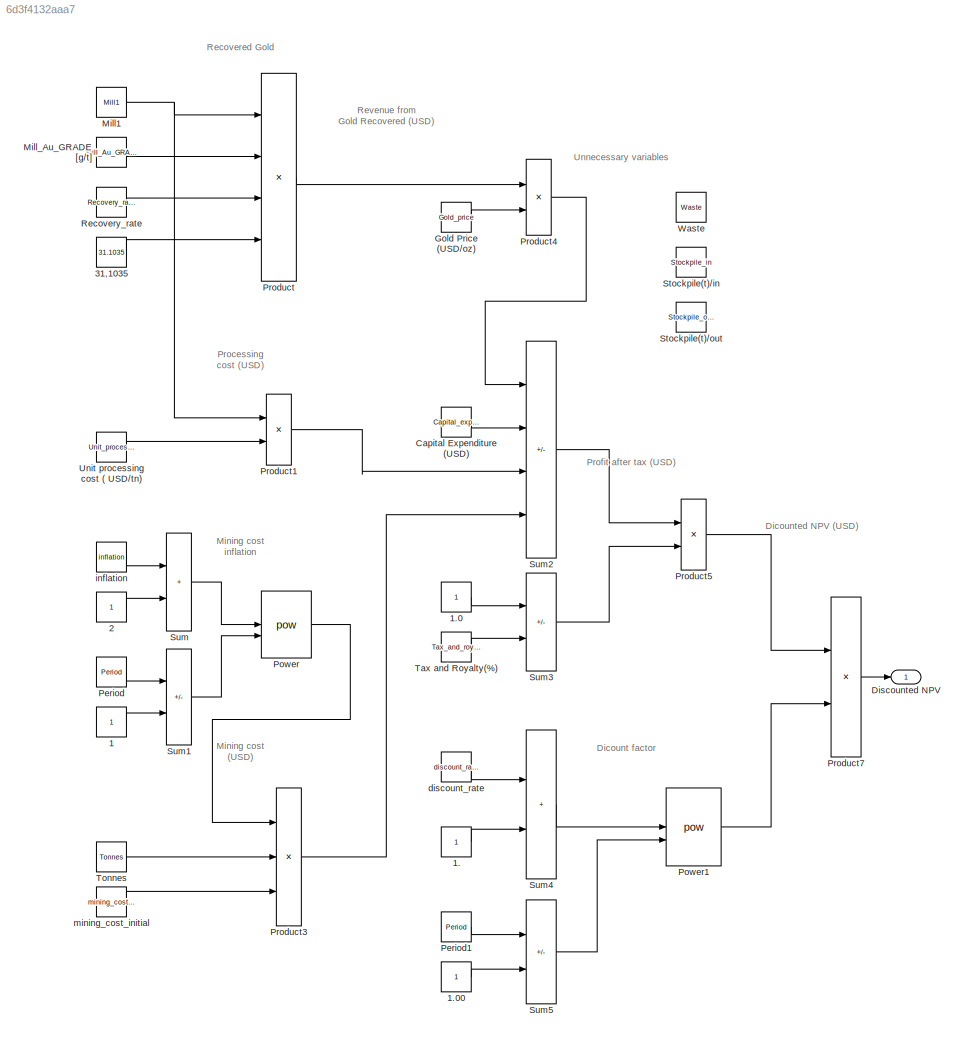
MODEL slx_6d3f4132aaa7
KIND model
CONFIG AbsTol = auto
CONFIG EnableMultiTasking = off
CONFIG FixedStep = auto
CONFIG MaxStep = auto
CONFIG MinStep = auto
CONFIG RelTol = 1e-3
CONFIG SampleTimeConstraint = Unconstrained
CONFIG SolverName = VariableStepAuto
CONFIG StartTime = 0.0
CONFIG StopTime = 1
BLOCK [Constant] 1
BLOCK [Constant] 1.
BLOCK [Constant] 1.0
BLOCK [Constant] 1.00
BLOCK [Constant] 2
BLOCK [Constant] 31,1035
  Value = 31.1035
BLOCK [Constant] Capital Expenditure (USD)
  Value = Capital_expenditure
BLOCK [Outport] Discounted NPV
  NameLocation = right
BLOCK [Constant] Gold Price (USD//oz)
  Value = Gold_price
BLOCK [Constant] Mill1
  Value = Mill1
BLOCK [Constant] Mill_Au_GRADE [g//t]
  Value = Mill_Au_GRADE
BLOCK [Constant] Period
  Value = Period
BLOCK [Constant] Period1
  Value = Period
BLOCK [Math] Power
  Operator = pow
BLOCK [Math] Power1
  Operator = pow
BLOCK [Product] Product
  Inputs = ***/
BLOCK [Product] Product1
  Inputs = **
BLOCK [Product] Product3
  Inputs = ***
BLOCK [Product] Product4
  Inputs = **
BLOCK [Product] Product5
  Inputs = **
BLOCK [Product] Product7
  Inputs = */
BLOCK [Constant] Recovery_rate
  Value = Recovery_rate
BLOCK [Constant] Stockpile(t)//in 
  Commented = on
  Value = Stockpile_in
BLOCK [Constant] Stockpile(t)//out
  Commented = on
  Value = Stockpile_out
BLOCK [Sum] Sum
  IconShape = rectangular
BLOCK [Sum] Sum1
  IconShape = rectangular
  Inputs = +-
BLOCK [Sum] Sum2
  IconShape = rectangular
  Inputs = +---
BLOCK [Sum] Sum3
  IconShape = rectangular
  Inputs = +-
BLOCK [Sum] Sum4
  IconShape = rectangular
BLOCK [Sum] Sum5
  IconShape = rectangular
  Inputs = +-
BLOCK [Constant] Tax and Royalty(%)  
  Value = Tax_and_royalty
BLOCK [Constant] Tonnes
  Value = Tonnes
BLOCK [Constant] Unit processing cost ( USD//tn)
  Value = Unit_processing_cost
BLOCK [Constant] Waste
  Commented = on
  Value = Waste
BLOCK [Constant] discount_rate
  Value = discount_rate
BLOCK [Constant] inflation
  Value = inflation
BLOCK [Constant] mining_cost_initial
  Value = mining_cost_initial
ANNOTATION (root): Dicount factor
ANNOTATION (root): Dicounted NPV (USD)
ANNOTATION (root): Mining cost (USD)
ANNOTATION (root): Mining cost inflation
ANNOTATION (root): Processing cost (USD)
ANNOTATION (root): Profit after tax (USD)
ANNOTATION (root): Recovered Gold
ANNOTATION (root): Revenue from Gold Recovered (USD)
ANNOTATION (root): Unnecessary variables
LINE 1.00:1 -> Sum5:2
LINE 1.0:1 -> Sum3:1
LINE 1.:1 -> Sum4:2
LINE 1:1 -> Sum1:2
LINE 2:1 -> Sum:2
LINE 31,1035:1 -> Product:4
LINE Capital Expenditure (USD):1 -> Sum2:2
LINE Gold Price (USD//oz):1 -> Product4:2
NET Mill1:1 -> Product1:1, Product:1
LINE Mill_Au_GRADE [g//t]:1 -> Product:2
LINE Period1:1 -> Sum5:1
LINE Period:1 -> Sum1:1
LINE Power1:1 -> Product7:2
LINE Power:1 -> Product3:1
LINE Product1:1 -> Sum2:3
LINE Product3:1 -> Sum2:4
LINE Product4:1 -> Sum2:1
LINE Product5:1 -> Product7:1
LINE Product7:1 -> Discounted NPV:1
LINE Product:1 -> Product4:1
LINE Recovery_rate:1 -> Product:3
LINE Sum1:1 -> Power:2
LINE Sum2:1 -> Product5:1
LINE Sum3:1 -> Product5:2
LINE Sum4:1 -> Power1:1
LINE Sum5:1 -> Power1:2
LINE Sum:1 -> Power:1
LINE Tax and Royalty(%)  :1 -> Sum3:2
LINE Tonnes:1 -> Product3:2
LINE Unit processing cost ( USD//tn):1 -> Product1:2
LINE discount_rate:1 -> Sum4:1
LINE inflation:1 -> Sum:1
LINE mining_cost_initial:1 -> Product3:3
note: NET lines group one-source signal fan-out (src -> all destinations, sorted); 1:1 wires keep LINE
